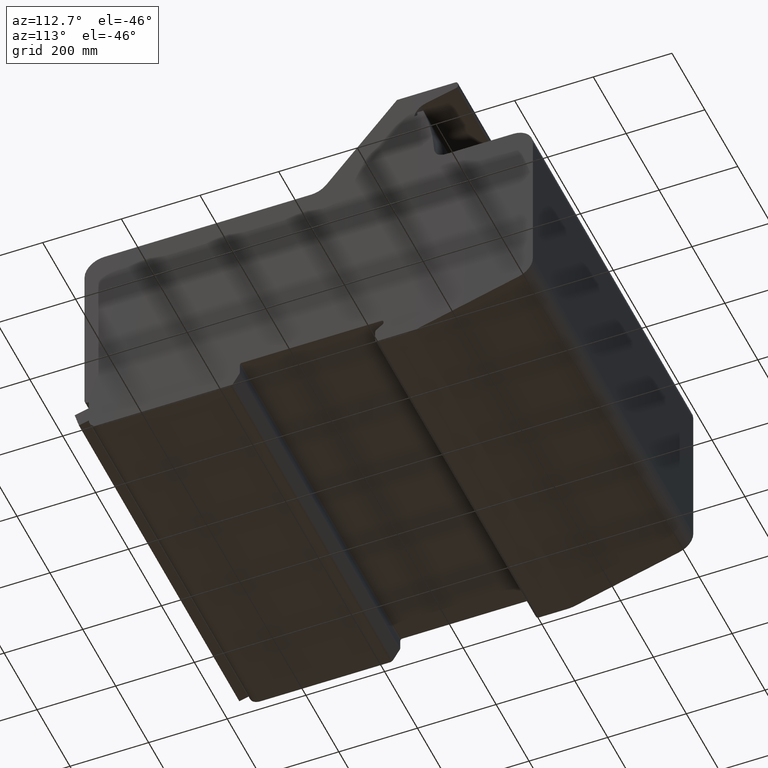
[diagram: clean part render]
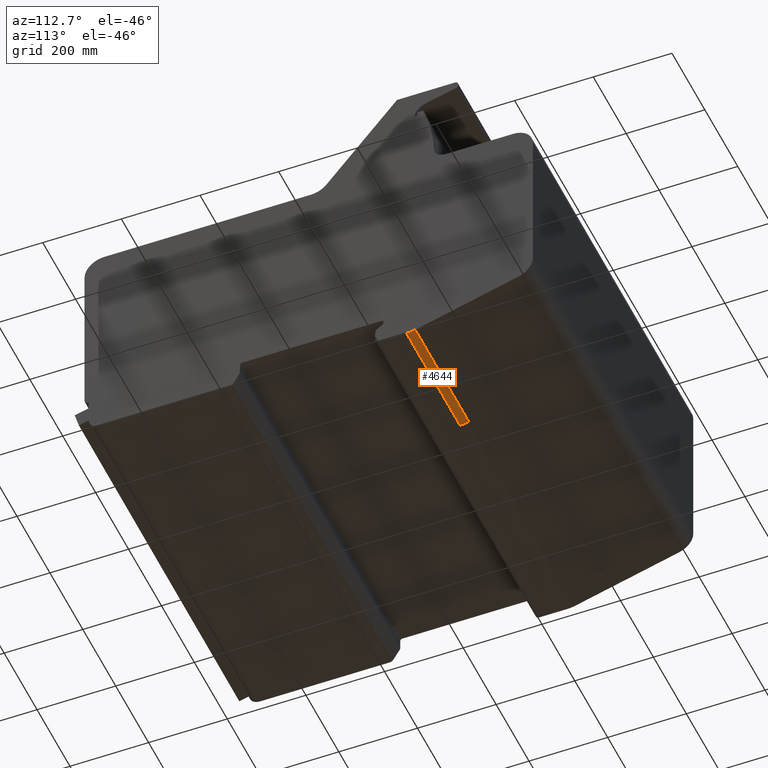
[diagram: same view with one face highlighted and labeled with its STEP entity id]
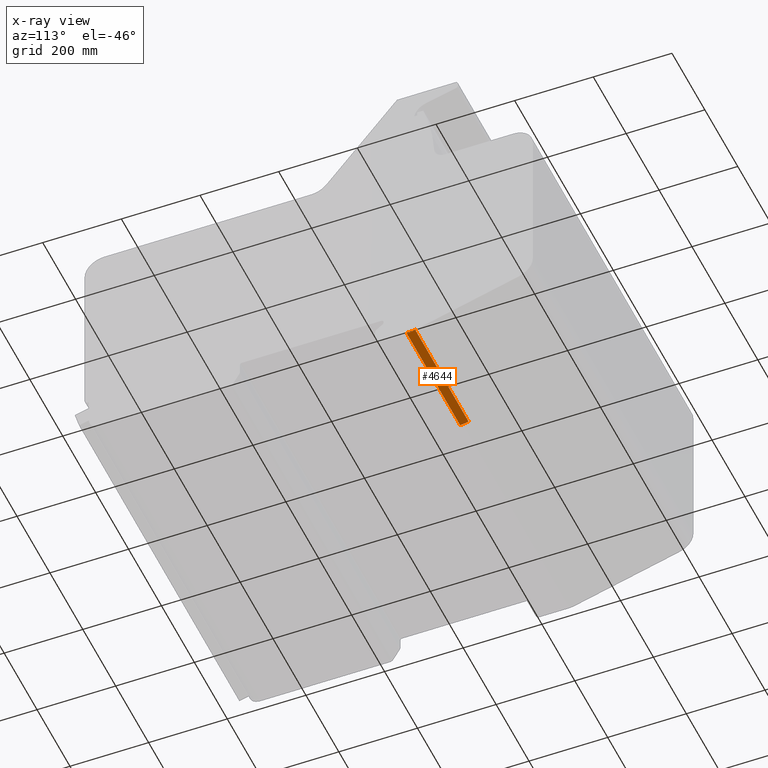
[diagram: x-ray of the same camera — body ghosted, the highlighted face saturated]
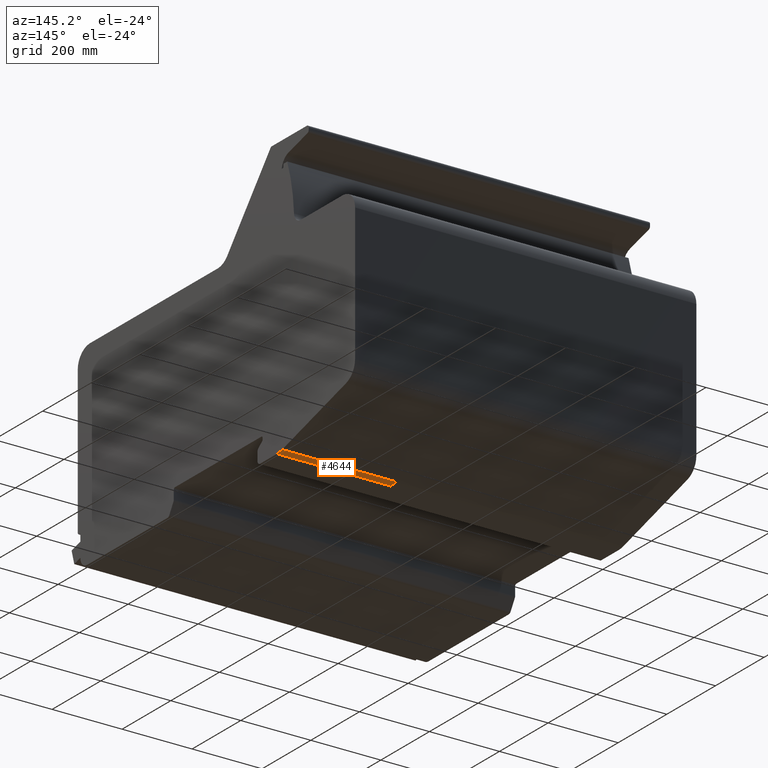
[diagram: same view with one face highlighted and labeled with its STEP entity id]
A machine part, auxiliary view. The second image highlights one B-rep face of the part: STEP entity #4644.
The next image is the same camera in x-ray: the body ghosted, the highlighted face saturated — about 0% of this face is hidden behind the body in this view.
A second angle (auxiliary view) of the same face is appended — the face is thin or edge-on in the first view.
In plain terms, the highlighted cylindrical surface (edge-blend (fillet) strip) has radius 80 mm, axis along (1, 0, 0).
Its self-contained STEP definition (entity closure, byte-faithful):
#4586=CARTESIAN_POINT('',(975.00000000000045,85.711639377584561,-64.459276563776129));
#4587=VERTEX_POINT('',#4586);
#4594=CARTESIAN_POINT('',(650.00000000000023,85.711639377584561,-64.459276563776129));
#4595=VERTEX_POINT('',#4594);
#4596=CARTESIAN_POINT('',(650.00000000000023,85.711639377584561,-64.459276563776129));
#4597=DIRECTION('',(1.0,0.0,0.0));
#4598=VECTOR('',#4597,325.00000000000011);
#4599=LINE('',#4596,#4598);
#4600=EDGE_CURVE('',#4595,#4587,#4599,.T.);
#4612=CARTESIAN_POINT('',(650.00000000000023,63.865135062701484,12.49999999999992));
#4613=DIRECTION('',(1.0,0.0,0.0));
#4614=DIRECTION('',(0.0,0.137856887663972,-0.990452158624334));
#4615=AXIS2_PLACEMENT_3D('',#4612,#4613,#4614);
#4616=CYLINDRICAL_SURFACE('',#4615,79.999999999999858);
#4617=CARTESIAN_POINT('',(975.00000000000045,63.865135062700347,-67.499999999999929));
#4618=VERTEX_POINT('',#4617);
#4619=CARTESIAN_POINT('',(975.00000000000045,63.865135062701484,12.49999999999992));
#4620=DIRECTION('',(-1.0,0.0,0.0));
#4621=DIRECTION('',(0.0,0.137856887663972,-0.990452158624334));
#4622=AXIS2_PLACEMENT_3D('',#4619,#4620,#4621);
#4623=CIRCLE('',#4622,79.999999999999858);
#4624=EDGE_CURVE('',#4587,#4618,#4623,.T.);
#4625=ORIENTED_EDGE('',*,*,#4624,.T.);
#4626=CARTESIAN_POINT('',(650.00000000000023,63.865135062700347,-67.499999999999929));
#4627=VERTEX_POINT('',#4626);
#4628=CARTESIAN_POINT('',(650.00000000000023,63.865135062700347,-67.499999999999929));
#4629=DIRECTION('',(1.0,0.0,0.0));
#4630=VECTOR('',#4629,325.00000000000011);
#4631=LINE('',#4628,#4630);
#4632=EDGE_CURVE('',#4627,#4618,#4631,.T.);
#4633=ORIENTED_EDGE('',*,*,#4632,.F.);
#4634=CARTESIAN_POINT('',(650.00000000000023,63.865135062701484,12.49999999999992));
#4635=DIRECTION('',(-1.0,0.0,0.0));
#4636=DIRECTION('',(0.0,0.137856887663972,-0.990452158624334));
#4637=AXIS2_PLACEMENT_3D('',#4634,#4635,#4636);
#4638=CIRCLE('',#4637,79.999999999999858);
#4639=EDGE_CURVE('',#4595,#4627,#4638,.T.);
#4640=ORIENTED_EDGE('',*,*,#4639,.F.);
#4641=ORIENTED_EDGE('',*,*,#4600,.T.);
#4642=EDGE_LOOP('',(#4625,#4633,#4640,#4641));
#4643=FACE_OUTER_BOUND('',#4642,.T.);
#4644=ADVANCED_FACE('',(#4643),#4616,.T.);